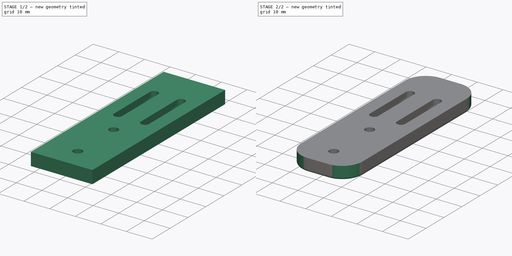
[diagram: build sequence overview — one tinted view per stage of 2, left to right]
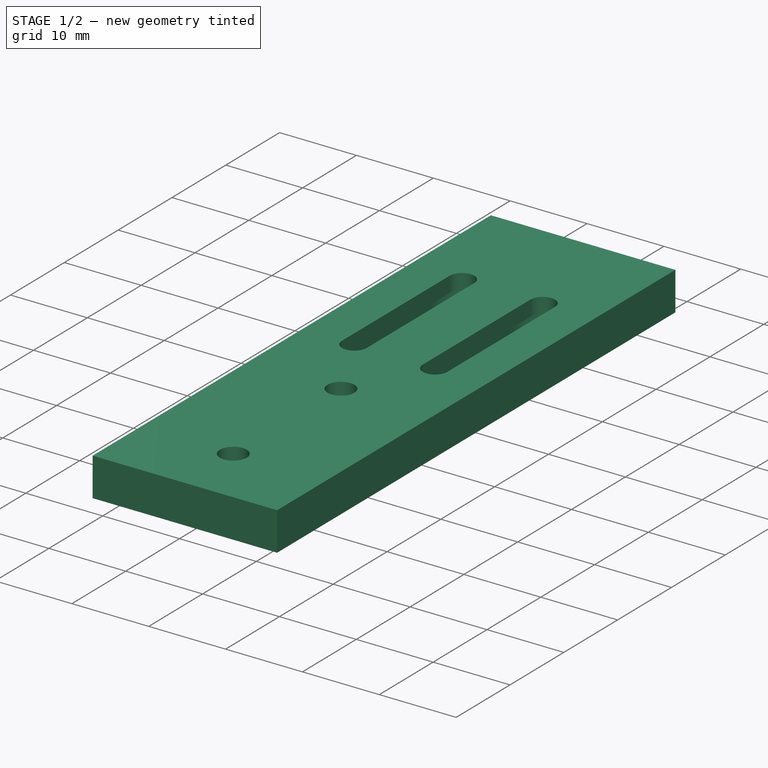
[diagram: stage 1 of 2 — iso view after this stage's code; geometry added in this stage tinted green]
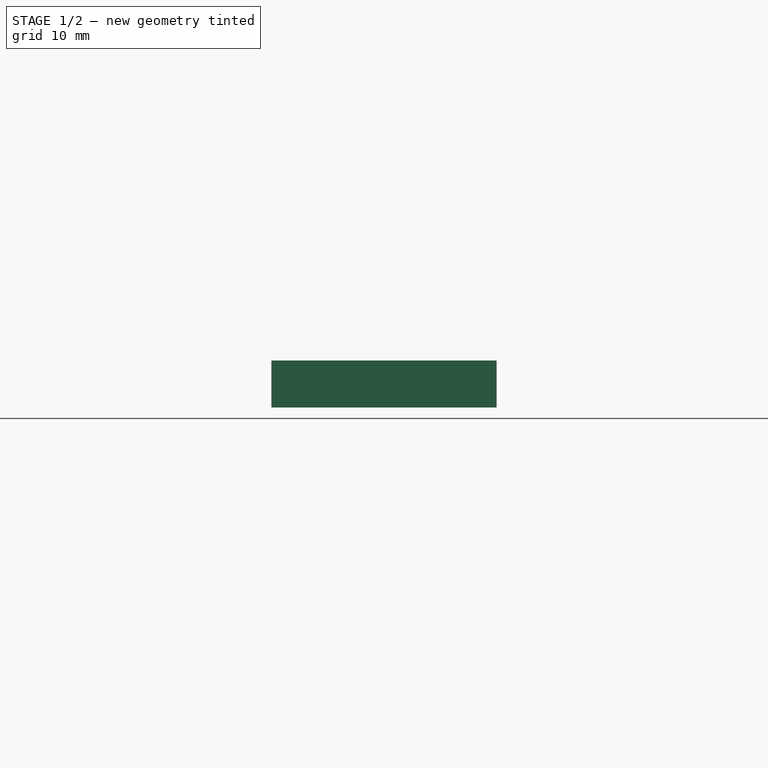
[diagram: stage 1 of 2 — front view after this stage's code; geometry added in this stage tinted green]
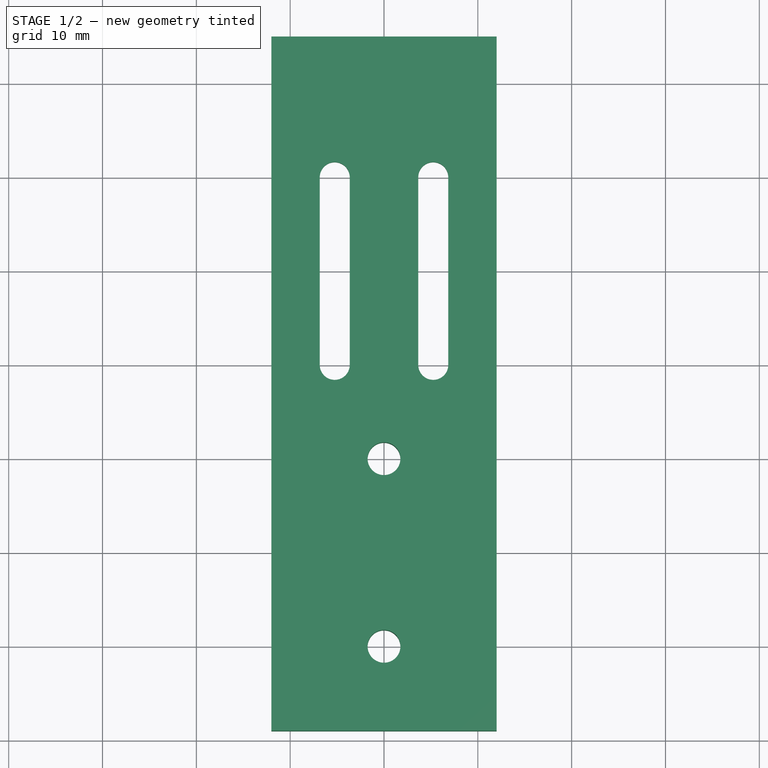
[diagram: stage 1 of 2 — top view after this stage's code; geometry added in this stage tinted green]
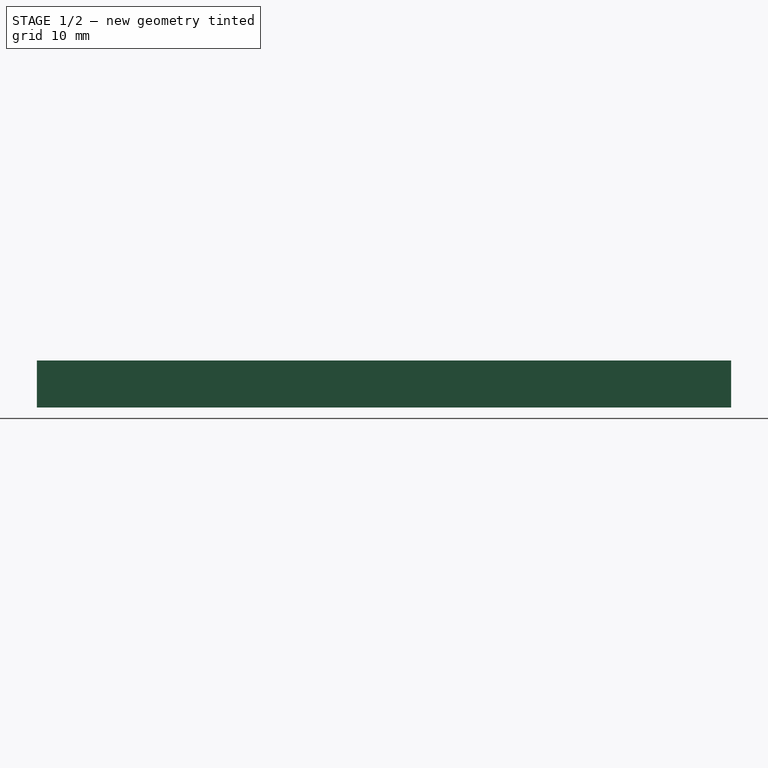
[diagram: stage 1 of 2 — right view after this stage's code; geometry added in this stage tinted green]
FCSTD DOCUMENT  (FreeCAD 0.19R24276 (Git))
Label: Zero_z_senser_holder
License: All rights reserved
LicenseURL: http://en.wikipedia.org/wiki/All_rights_reserved
objects: Sketcher::SketchObject×2, PartDesign::Fillet×2, PartDesign::Pad×1, PartDesign::Pocket×1, PartDesign::Body×1
note: 11 computed .brp shape members not serialized (recipe doc carries the construction recipe); baked Part::Feature solids carry a one-line shape summary decoded from their .brp

FEATURE [Sketcher::SketchObject] Sketch
  FullyConstrained = true
  MapMode = 5
  Support = -> [XY_Plane]
  sketch-geometry (19):
    g0: Circle CenterX=0 CenterY=0 CenterZ=0 NormalX=0 NormalY=0 NormalZ=1 AngleXU=0 Radius=1.75
    g1: Circle CenterX=0 CenterY=20 CenterZ=0 NormalX=0 NormalY=0 NormalZ=1 AngleXU=0 Radius=1.75
    g2: LineSegment StartX=-5.25 StartY=10 StartZ=0 EndX=0 EndY=10 EndZ=0
    g3: ArcOfCircle CenterX=-5.25 CenterY=10 CenterZ=0 NormalX=0 NormalY=0 NormalZ=1 AngleXU=0 Radius=1.6 StartAngle=3.14159 EndAngle=6.28319
    g4: ArcOfCircle CenterX=-5.25 CenterY=30 CenterZ=0 NormalX=0 NormalY=0 NormalZ=1 AngleXU=0 Radius=1.6 StartAngle=6e-16 EndAngle=3.14159
    g5: LineSegment StartX=-3.65 StartY=10 StartZ=0 EndX=-3.65 EndY=30 EndZ=0
    g6: LineSegment StartX=-6.85 StartY=10 StartZ=0 EndX=-6.85 EndY=30 EndZ=0
    g7: LineSegment StartX=-12 StartY=45 StartZ=0 EndX=12 EndY=45 EndZ=0
    g8: LineSegment StartX=0 StartY=10 StartZ=0 EndX=0 EndY=0 EndZ=0
    g9: ArcOfCircle CenterX=5.25 CenterY=10 CenterZ=0 NormalX=0 NormalY=0 NormalZ=1 AngleXU=0 Radius=1.6 StartAngle=3.14159 EndAngle=6.28319
    g10: ArcOfCircle CenterX=5.25 CenterY=30 CenterZ=0 NormalX=0 NormalY=0 NormalZ=1 AngleXU=0 Radius=1.6 StartAngle=0 EndAngle=3.14159
    g11: LineSegment StartX=3.65 StartY=10 StartZ=0 EndX=3.65 EndY=30 EndZ=0
    g12: LineSegment StartX=6.85 StartY=10 StartZ=0 EndX=6.85 EndY=30 EndZ=0
    g13: LineSegment StartX=0 StartY=10 StartZ=0 EndX=5.25 EndY=10 EndZ=0
    g14: Circle CenterX=0 CenterY=-20 CenterZ=0 NormalX=0 NormalY=0 NormalZ=1 AngleXU=0 Radius=1.75
    g15: LineSegment StartX=-12 StartY=-29 StartZ=0 EndX=12 EndY=-29 EndZ=0
    g16: LineSegment StartX=12 StartY=45 StartZ=0 EndX=12 EndY=-29 EndZ=0
    g17: LineSegment StartX=-12 StartY=45 StartZ=0 EndX=-12 EndY=-29 EndZ=0
    g18: LineSegment StartX=0 StartY=-20 StartZ=0 EndX=0 EndY=-29 EndZ=0
  constraints (49):
    c: Coincident(g0,g-1)
    c: PointOnObject(g1,g-2)
    c: Equal(g1,g0)
    c: DistanceY(g0,g1) = 20
    c: Horizontal(g2)
    c: Tangent(g3,g6) = 1.5708
    c: Tangent(g3,g5) = -1.5708
    c: Tangent(g5,g4) = -1.5708
    c: Tangent(g6,g4) = 1.5708
    c: Vertical(g5)
    c: Equal(g3,g4)
    c: Diameter(g3) = 3.2
    c: DistanceY(g2,g4) = 20
    c: Horizontal(g7)
    c: Coincident(g8,g2)
    c: Vertical(g8)
    c: Tangent(g9,g12) = -1.5708
    c: Tangent(g9,g11) = 1.5708
    c: Tangent(g11,g10) = 1.5708
    c: Tangent(g12,g10) = -1.5708
    c: Vertical(g11)
    c: Equal(g9,g10)
    c: Diameter(g9) = 3.2
    c: Coincident(g13,g2)
    c: Coincident(g13,g9)
    c: Horizontal(g13)
    c: Equal(g2,g13)
    c: Coincident(g2,g3)
    c: DistanceY(g9,g10) = 20
    c: DistanceX(g2,g9) = 10.5
    c: Coincident(g8,g-1)
    c: Diameter(g1) = 3.5
    c: PointOnObject(g14,g-2)
    c: Equal(g14,g0)
    c: DistanceY(g14,g0) = 20
    c: Horizontal(g15)
    c: Coincident(g16,g7)
    c: Coincident(g16,g15)
    c: Vertical(g16)
    c: Coincident(g17,g7)
    c: Coincident(g17,g15)
    c: Vertical(g17)
    c: Coincident(g18,g14)
    c: Vertical(g18)
    c: Symmetric(g17,g16,g18)
    c: DistanceX(g7,g7) = 24
    c: DistanceY(g10,g7) = 15
    c: DistanceY(g15,g7) = 74
    c: DistanceY(g1,g10) = 10
FEATURE [PartDesign::Pad] Pad  label="Pad_h5"
  Direction = (1,1,1)
  Length = 5
  Length2 = 100
  Profile = -> Sketch
  Type = 0
FEATURE [Sketcher::SketchObject] Sketch001
  FullyConstrained = false
  MapMode = 5
  Support = -> [XY_Plane]
  sketch-geometry (31):
    g0: Circle CenterX=0 CenterY=0 CenterZ=0 NormalX=0 NormalY=0 NormalZ=1 AngleXU=0 Radius=1.75
    g1: Circle CenterX=0 CenterY=20 CenterZ=0 NormalX=0 NormalY=0 NormalZ=1 AngleXU=0 Radius=1.75
    g2: LineSegment StartX=-5.25 StartY=10 StartZ=0 EndX=0 EndY=10 EndZ=0
    g3: ArcOfCircle CenterX=-5.25 CenterY=10 CenterZ=0 NormalX=0 NormalY=0 NormalZ=1 AngleXU=0 Radius=1.6 StartAngle=3.14159 EndAngle=6.28319
    g4: ArcOfCircle CenterX=-5.25 CenterY=30 CenterZ=0 NormalX=0 NormalY=0 NormalZ=1 AngleXU=0 Radius=1.6 StartAngle=1e-16 EndAngle=3.14159
    g5: LineSegment StartX=-3.65 StartY=10 StartZ=0 EndX=-3.65 EndY=30 EndZ=0
    g6: LineSegment StartX=-6.85 StartY=10 StartZ=0 EndX=-6.85 EndY=30 EndZ=0
    g7: LineSegment StartX=-12 StartY=45 StartZ=0 EndX=12 EndY=45 EndZ=0
    g8: LineSegment StartX=0 StartY=10 StartZ=0 EndX=0 EndY=0 EndZ=0
    g9: ArcOfCircle CenterX=5.25 CenterY=10 CenterZ=0 NormalX=0 NormalY=0 NormalZ=1 AngleXU=0 Radius=1.6 StartAngle=3.14159 EndAngle=6.28319
    g10: ArcOfCircle CenterX=5.25 CenterY=30 CenterZ=0 NormalX=0 NormalY=0 NormalZ=1 AngleXU=0 Radius=1.6 StartAngle=-9e-16 EndAngle=3.14159
    g11: LineSegment StartX=3.65 StartY=10 StartZ=0 EndX=3.65 EndY=30 EndZ=0
    g12: LineSegment StartX=6.85 StartY=10 StartZ=0 EndX=6.85 EndY=30 EndZ=0
    g13: LineSegment StartX=0 StartY=10 StartZ=0 EndX=5.25 EndY=10 EndZ=0
    g14: Circle CenterX=0 CenterY=-20 CenterZ=0 NormalX=0 NormalY=0 NormalZ=1 AngleXU=0 Radius=1.75
    g15: LineSegment StartX=-12 StartY=-29 StartZ=0 EndX=12 EndY=-29 EndZ=0
    g16: LineSegment StartX=12 StartY=45 StartZ=0 EndX=12 EndY=-29 EndZ=0
    g17: LineSegment StartX=-12 StartY=45 StartZ=0 EndX=-12 EndY=-29 EndZ=0
    g18: LineSegment StartX=0 StartY=-20 StartZ=0 EndX=0 EndY=-29 EndZ=0
    g19: ArcOfCircle CenterX=5.25 CenterY=10 CenterZ=0 NormalX=0 NormalY=0 NormalZ=1 AngleXU=0 Radius=4 StartAngle=3.14159 EndAngle=6.28319
    g20: ArcOfCircle CenterX=5.25 CenterY=30 CenterZ=0 NormalX=0 NormalY=0 NormalZ=1 AngleXU=0 Radius=4 StartAngle=0 EndAngle=3.14159
    g21: LineSegment StartX=9.25 StartY=10 StartZ=0 EndX=9.25 EndY=30 EndZ=0
    g22: LineSegment StartX=1.25 StartY=10 StartZ=0 EndX=1.25 EndY=30 EndZ=0
    g23: LineSegment StartX=-12 StartY=-29 StartZ=0 EndX=12 EndY=-29 EndZ=0
    g24: LineSegment StartX=12 StartY=-29 StartZ=0 EndX=12 EndY=45 EndZ=0
    g25: LineSegment StartX=12 StartY=45 StartZ=0 EndX=-12 EndY=45 EndZ=0
    g26: LineSegment StartX=-12 StartY=45 StartZ=0 EndX=-12 EndY=-29 EndZ=0
    g27: ArcOfCircle CenterX=-5.25 CenterY=10 CenterZ=0 NormalX=0 NormalY=0 NormalZ=1 AngleXU=0 Radius=4 StartAngle=3.14159 EndAngle=6.28319
    g28: ArcOfCircle CenterX=-5.25 CenterY=30 CenterZ=0 NormalX=0 NormalY=0 NormalZ=1 AngleXU=0 Radius=4 StartAngle=3e-16 EndAngle=3.14159
    g29: LineSegment StartX=-1.25 StartY=10 StartZ=0 EndX=-1.25 EndY=30 EndZ=0
    g30: LineSegment StartX=-9.25 StartY=10 StartZ=0 EndX=-9.25 EndY=30 EndZ=0
  constraints (76):
    c: Coincident(g0,g-1)
    c: PointOnObject(g1,g-2)
    c: Equal(g1,g0)
    c: DistanceY(g0,g1) = 20
    c: Horizontal(g2)
    c: Tangent(g3,g6) = 1.5708
    c: Tangent(g3,g5) = -1.5708
    c: Tangent(g5,g4) = -1.5708
    c: Tangent(g6,g4) = 1.5708
    c: Vertical(g5)
    c: Equal(g3,g4)
    c: Diameter(g3) = 3.2
    c: DistanceY(g2,g4) = 20
    c: Horizontal(g7)
    c: Coincident(g8,g2)
    c: Vertical(g8)
    c: Tangent(g9,g12) = -1.5708
    c: Tangent(g9,g11) = 1.5708
    c: Tangent(g11,g10) = 1.5708
    c: Tangent(g12,g10) = -1.5708
    c: Vertical(g11)
    c: Equal(g9,g10)
    c: Diameter(g9) = 3.2
    c: Coincident(g13,g2)
    c: Coincident(g13,g9)
    c: Horizontal(g13)
    c: Equal(g2,g13)
    c: Coincident(g2,g3)
    c: DistanceY(g9,g10) = 20
    c: DistanceX(g2,g9) = 10.5
    c: Coincident(g8,g-1)
    c: Diameter(g1) = 3.5
    c: PointOnObject(g14,g-2)
    c: Equal(g14,g0)
    c: DistanceY(g14,g0) = 20
    c: Horizontal(g15)
    c: Coincident(g16,g7)
    c: Coincident(g16,g15)
    c: Vertical(g16)
    c: Coincident(g17,g7)
    c: Coincident(g17,g15)
    c: Vertical(g17)
    c: Coincident(g18,g14)
    c: Vertical(g18)
    c: Symmetric(g17,g16,g18)
    c: DistanceX(g7,g7) = 24
    c: DistanceY(g10,g7) = 15
    c: DistanceY(g15,g7) = 74
    c: DistanceY(g1,g10) = 10
    c: Tangent(g19,g22) = 1.5708
    c: Tangent(g19,g21) = -1.5708
    c: Tangent(g21,g20) = -1.5708
    c: Tangent(g22,g20) = 1.5708
    c: Vertical(g21)
    c: Equal(g19,g20)
    c: Coincident(g19,g9)
    c: DistanceY(g9,g20) = 20
    c: Diameter(g19) = 8
    c: Coincident(g23,g24)
    c: Coincident(g24,g25)
    c: Coincident(g25,g26)
    c: Coincident(g26,g23)
    c: Horizontal(g23)
    c: Horizontal(g25)
    c: Vertical(g24)
    c: Vertical(g26)
    c: Coincident(g23,g15)
    c: Tangent(g27,g30) = 1.5708
    c: Tangent(g27,g29) = -1.5708
    c: Tangent(g29,g28) = -1.5708
    c: Tangent(g30,g28) = 1.5708
    c: Vertical(g29)
    c: Equal(g27,g28)
    c: Coincident(g27,g2)
    c: DistanceY(g27,g28) = 20
    c: Diameter(g27) = 8
FEATURE [PartDesign::Pocket] Pocket
  BaseFeature = -> Pad
  Length = 3
  Length2 = 100
  Profile = -> Sketch001
  Reversed = true
  Type = 0
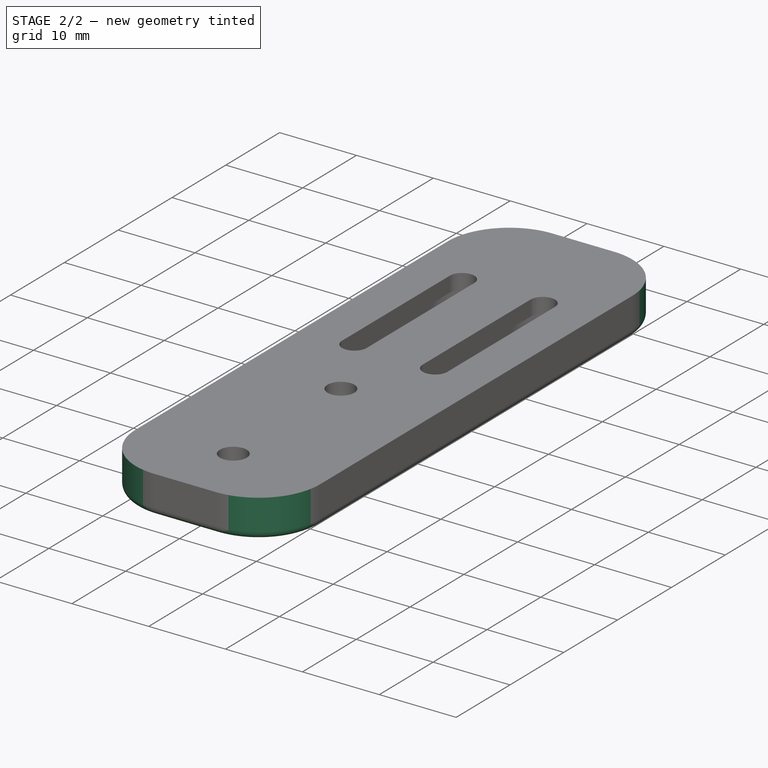
[diagram: stage 2 of 2 — iso view after this stage's code; geometry added in this stage tinted green]
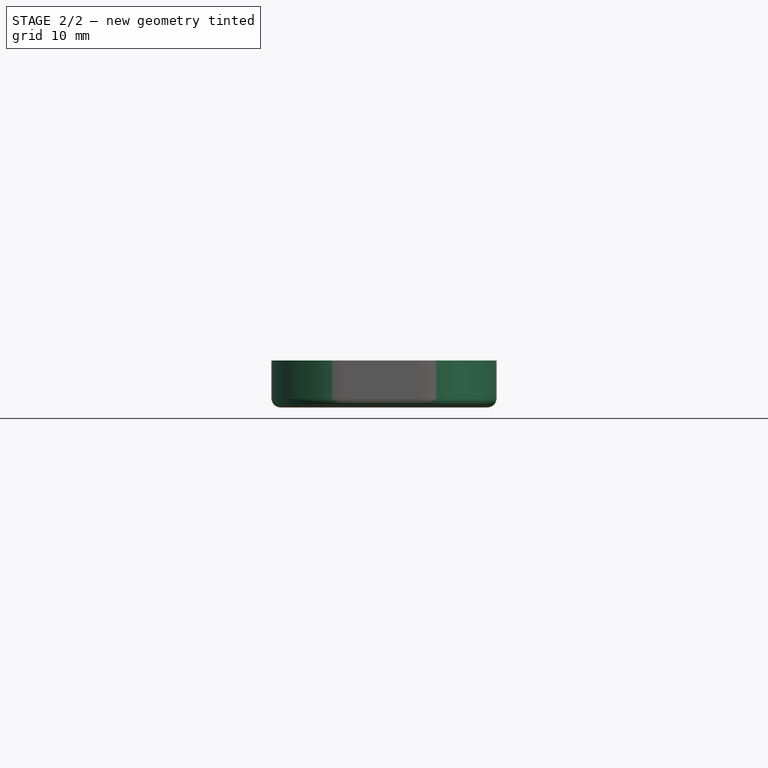
[diagram: stage 2 of 2 — front view after this stage's code; geometry added in this stage tinted green]
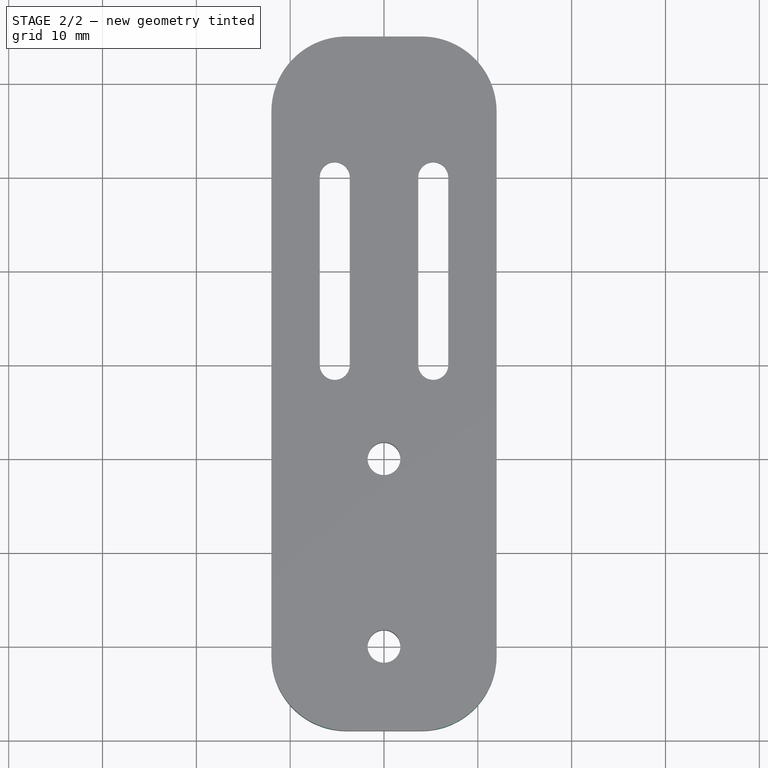
[diagram: stage 2 of 2 — top view after this stage's code; geometry added in this stage tinted green]
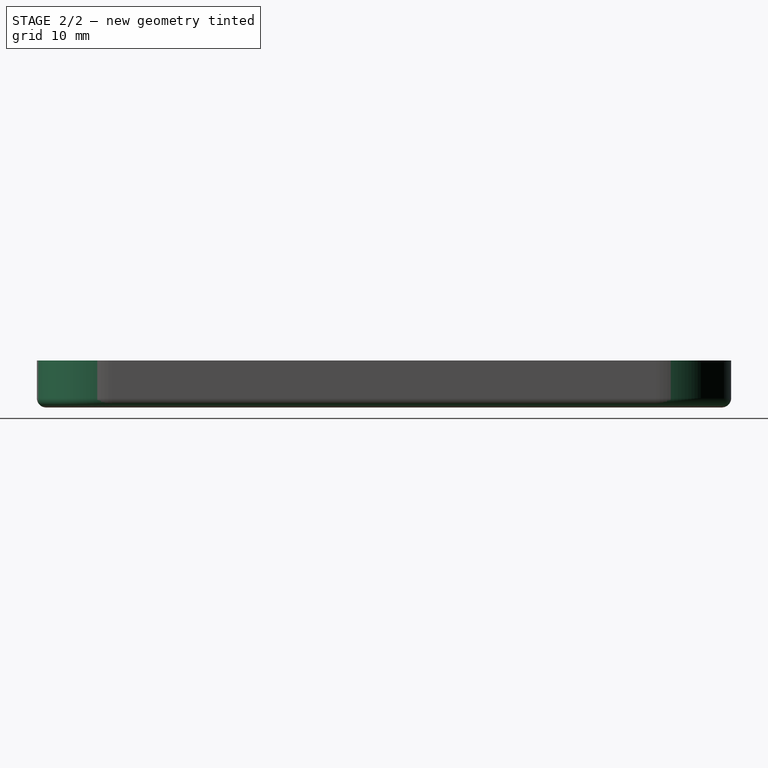
[diagram: stage 2 of 2 — right view after this stage's code; geometry added in this stage tinted green]
FEATURE [PartDesign::Fillet] Fillet
  Base = -> Pocket [Edge5,Edge8,Edge2,Edge1]
  BaseFeature = -> Pocket
  Radius = 8
  SupportTransform = false
FEATURE [PartDesign::Fillet] Fillet001
  Base = -> Fillet [Edge7,Edge9,Edge11,Edge10,Edge8,Edge1,Edge5,Edge6]
  BaseFeature = -> Fillet
  Radius = 1
  SupportTransform = false
FEATURE [PartDesign::Body] Body
  Group = -> [Sketch,Pad,Sketch001,Pocket,Fillet,Fillet001]
  Origin = -> Origin
  Tip = -> Fillet001
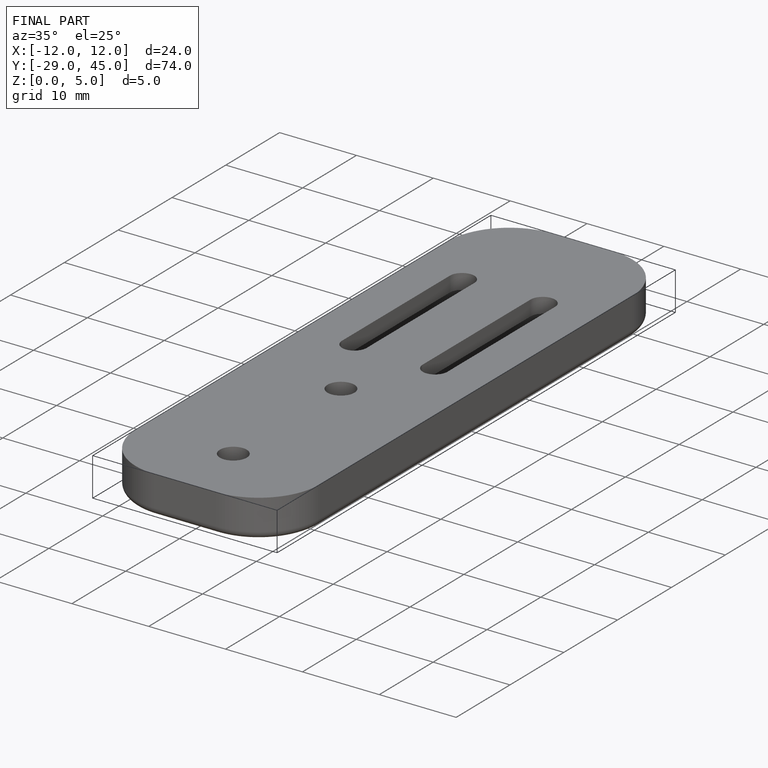
[diagram: finished part — iso view with bounding-box wireframe]
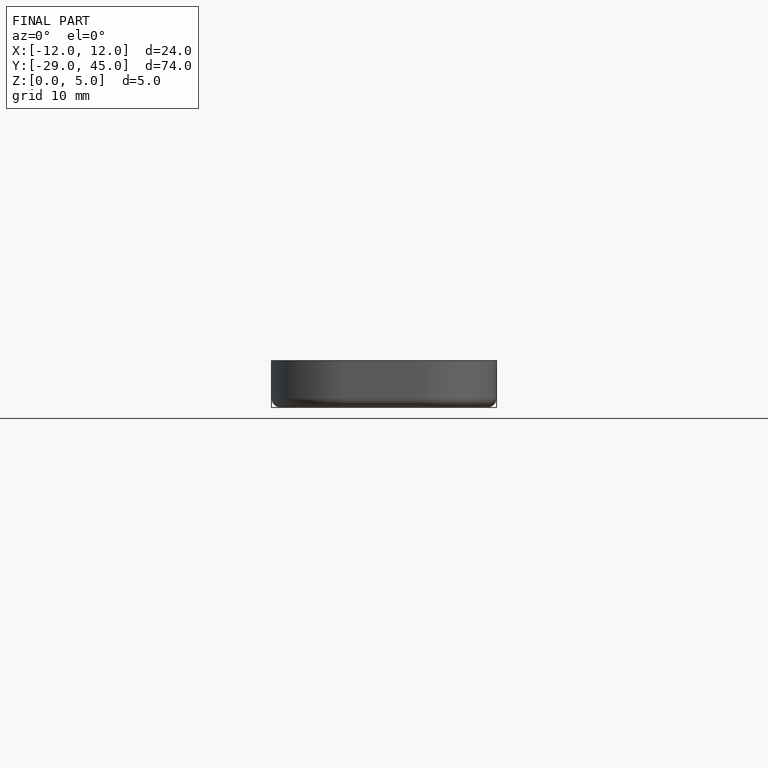
[diagram: finished part — front view with bounding-box wireframe]
